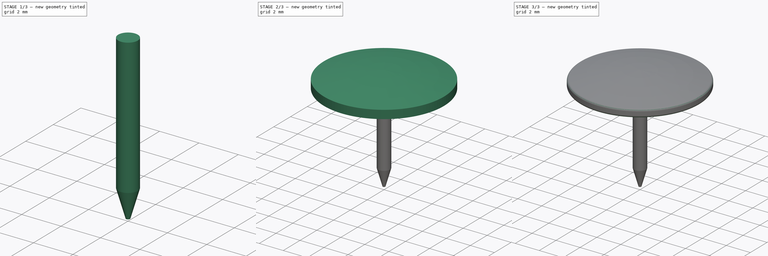
[diagram: build sequence overview — one tinted view per stage of 3, left to right]
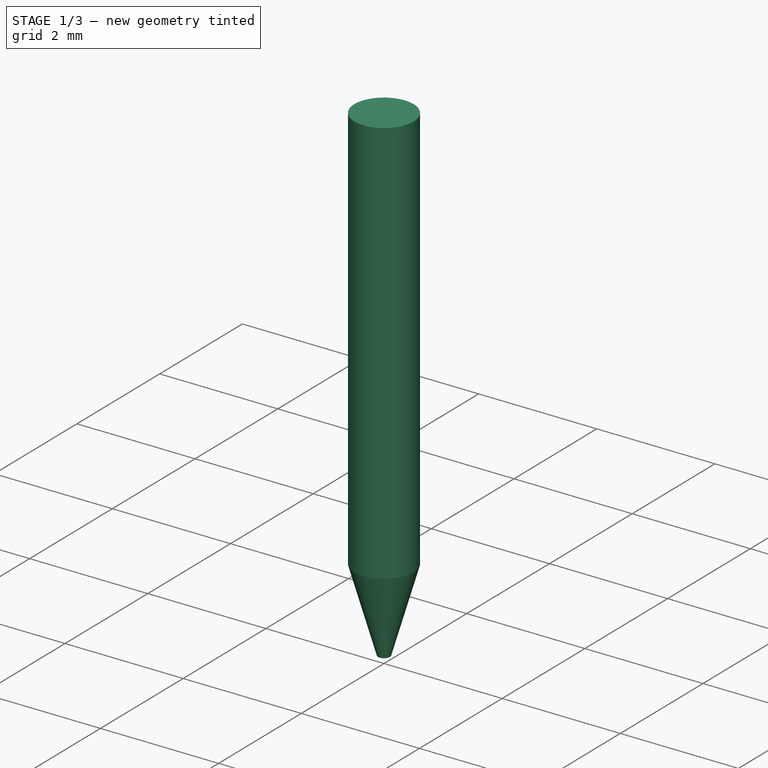
[diagram: stage 1 of 3 — iso view after this stage's code; geometry added in this stage tinted green]
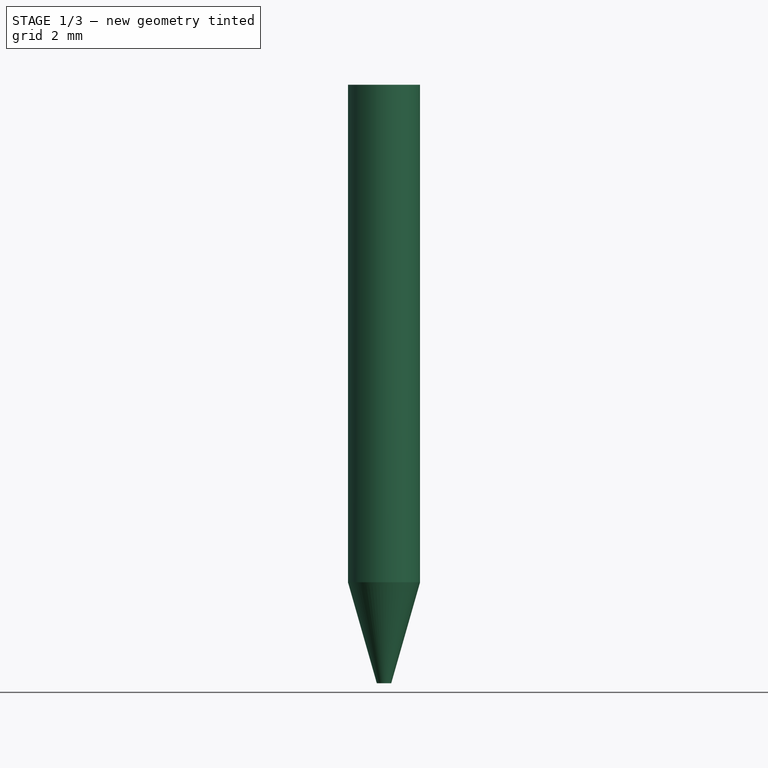
[diagram: stage 1 of 3 — front view after this stage's code; geometry added in this stage tinted green]
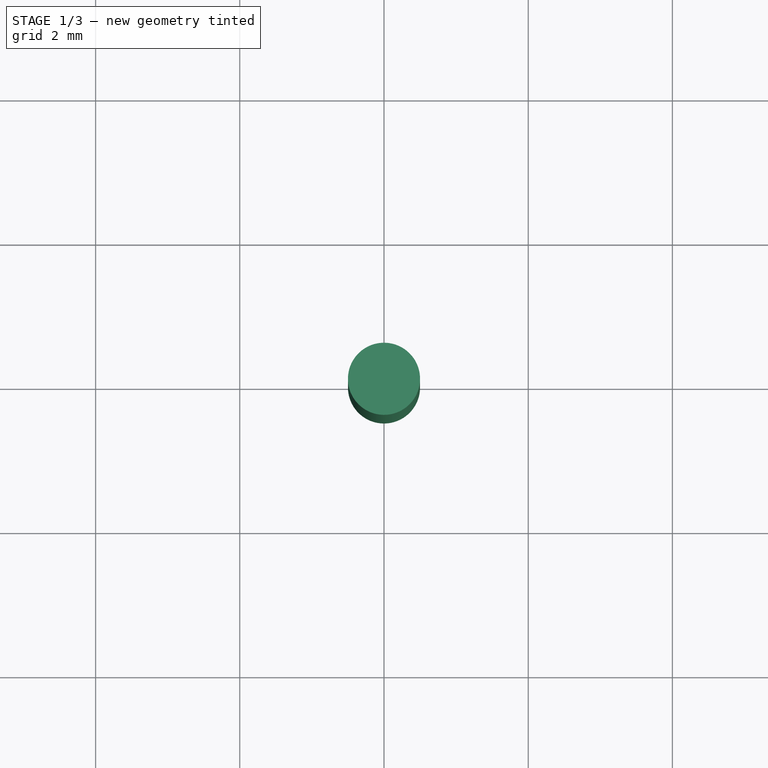
[diagram: stage 1 of 3 — top view after this stage's code; geometry added in this stage tinted green]
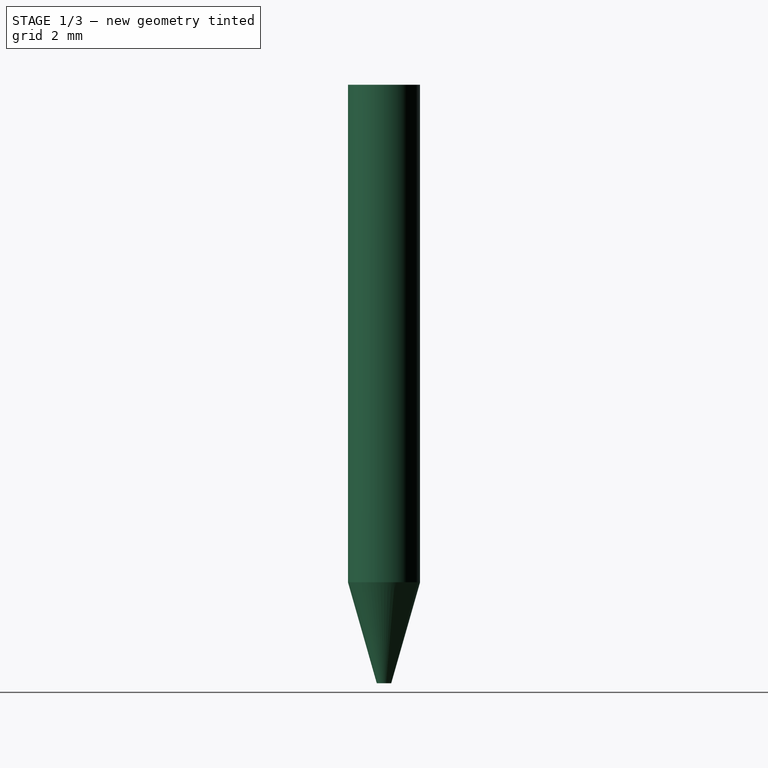
[diagram: stage 1 of 3 — right view after this stage's code; geometry added in this stage tinted green]
FCSTD DOCUMENT  (FreeCAD 0.16R6707 (Git))
Label: pushpin-model-II
License: All rights reserved
LicenseURL: http://en.wikipedia.org/wiki/All_rights_reserved
objects: Sketcher::SketchObject×2, PartDesign::Revolution×2, Part::FeaturePython×2, PartDesign::Fillet×1, App::DocumentObjectGroup×1
note: 9 computed .brp shape members not serialized (recipe doc carries the construction recipe); baked Part::Feature solids carry a one-line shape summary decoded from their .brp

FEATURE [Sketcher::SketchObject] Sketch001  label="pin-sketch"
  Placement = pos=(0,0,0) rot=(-1,0,0;4.71239rad)
  expr: Constraints[15] = 0.2 / 2
  sketch-geometry (6):
    g0: LineSegment StartX=0 StartY=0 StartZ=0 EndX=0 EndY=0.9 EndZ=0
    g1: LineSegment StartX=0 StartY=0.9 StartZ=0 EndX=0.5 EndY=0.9 EndZ=0
    g2: LineSegment StartX=0.5 StartY=0.9 StartZ=0 EndX=0.5 EndY=-6 EndZ=0
    g3: LineSegment StartX=0.5 StartY=-6 StartZ=0 EndX=0.1 EndY=-7.4 EndZ=0
    g4: LineSegment StartX=0.1 StartY=-7.4 StartZ=0 EndX=0 EndY=-7.4 EndZ=0
    g5: LineSegment StartX=0 StartY=-7.4 StartZ=0 EndX=0 EndY=0 EndZ=0
  constraints (17):
    c: Coincident(g-1,g0)
    c: Vertical(g0)
    c: Coincident(g0,g1)
    c: Horizontal(g1)
    c: Coincident(g1,g2)
    c: Vertical(g2)
    c: Coincident(g2,g3)
    c: Coincident(g3,g4)
    c: Horizontal(g4)
    c: Coincident(g4,g5)
    c: Coincident(g5,g0)
    c: Vertical(g5)
    c: DistanceX(g1,g1) = 0.5
    c: DistanceY(g5,g5) = 7.4
    c: DistanceY(g3,g2) = 1.4
    c: DistanceX(g4,g4) = 0.1
    c: DistanceY(g0,g0) = 0.9
FEATURE [PartDesign::Revolution] Revolution001  label="pin-src"
  Angle = 360
  Axis = (0,0,1)
  Base = (0,0,0)
  Placement = pos=(0,0,0) rot=(-1,0,0;4.71239rad)
  ReferenceAxis = -> Sketch001 [V_Axis]
  Reversed = true
  Sketch = -> Sketch001
FEATURE [App::DocumentObjectGroup] Grupo  label="src"
  Group = -> [Revolution,Fillet,Revolution001]
FEATURE [Part::FeaturePython] Clone001  label="Pin"  # Draft clone (typed FeaturePython)
  Objects = -> [Revolution001]
  Placement = pos=(0,0,0) rot=(-1,0,0;4.71239rad)
  Scale = (1,1,1)
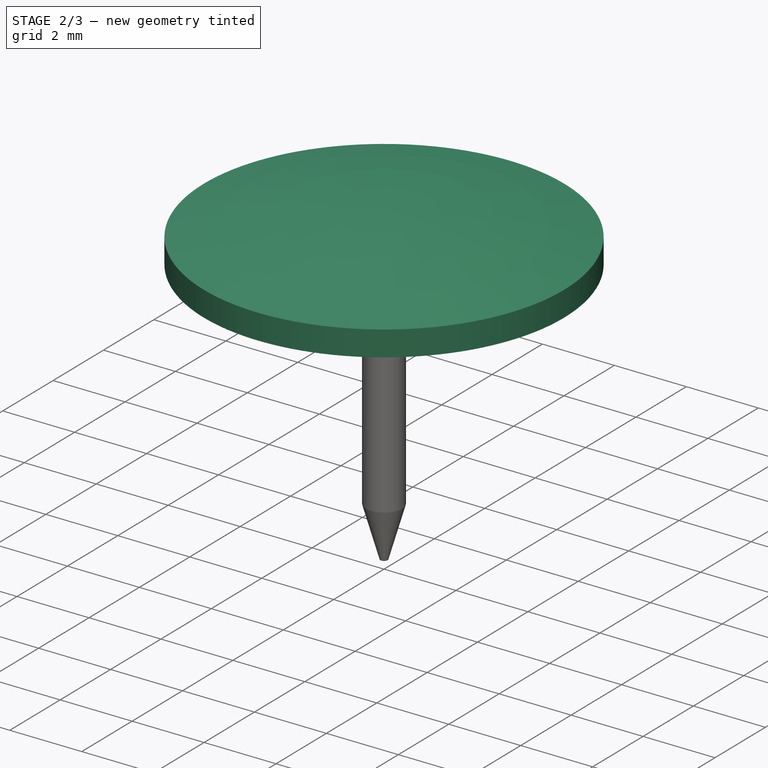
[diagram: stage 2 of 3 — iso view after this stage's code; geometry added in this stage tinted green]
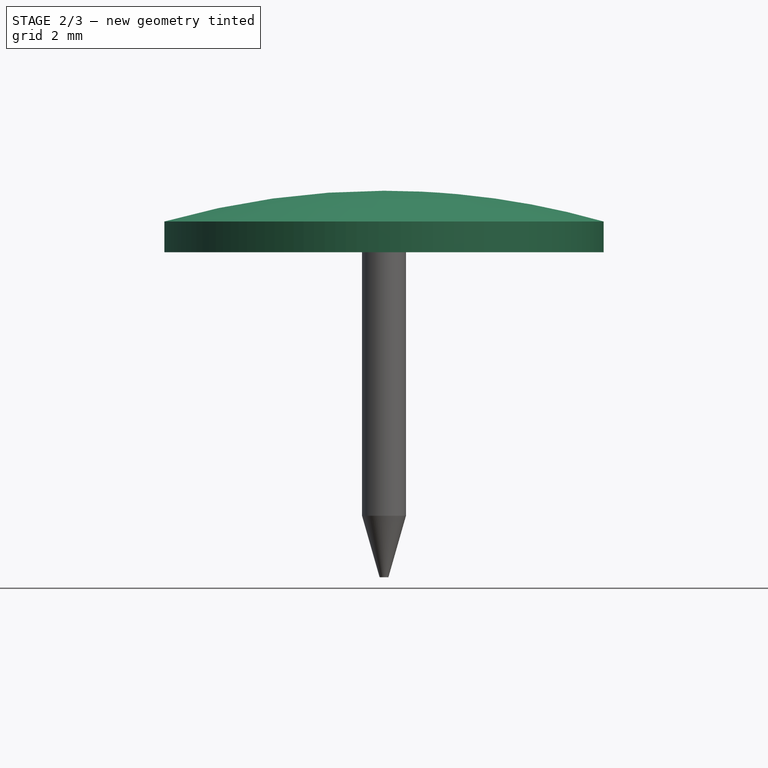
[diagram: stage 2 of 3 — front view after this stage's code; geometry added in this stage tinted green]
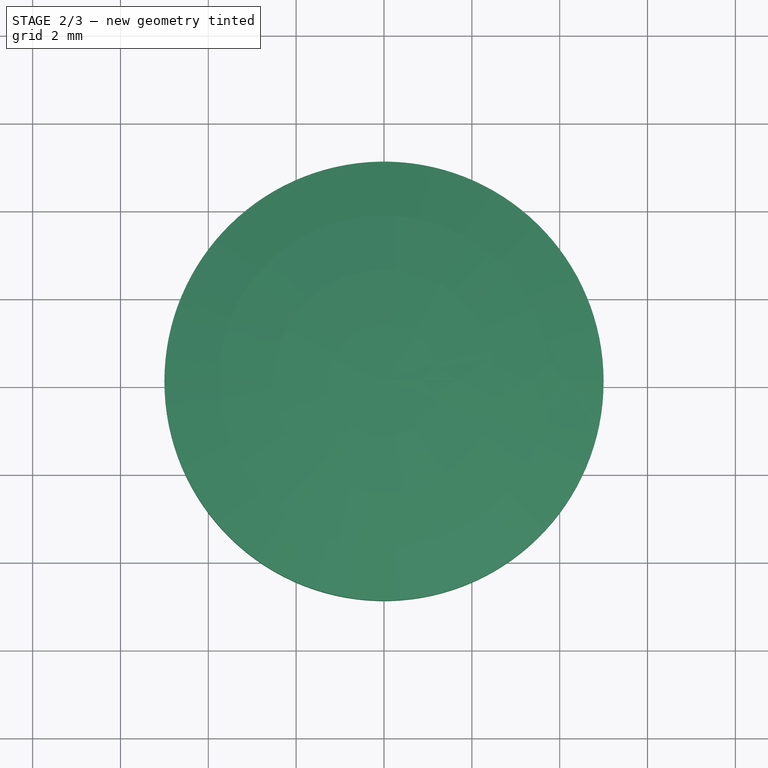
[diagram: stage 2 of 3 — top view after this stage's code; geometry added in this stage tinted green]
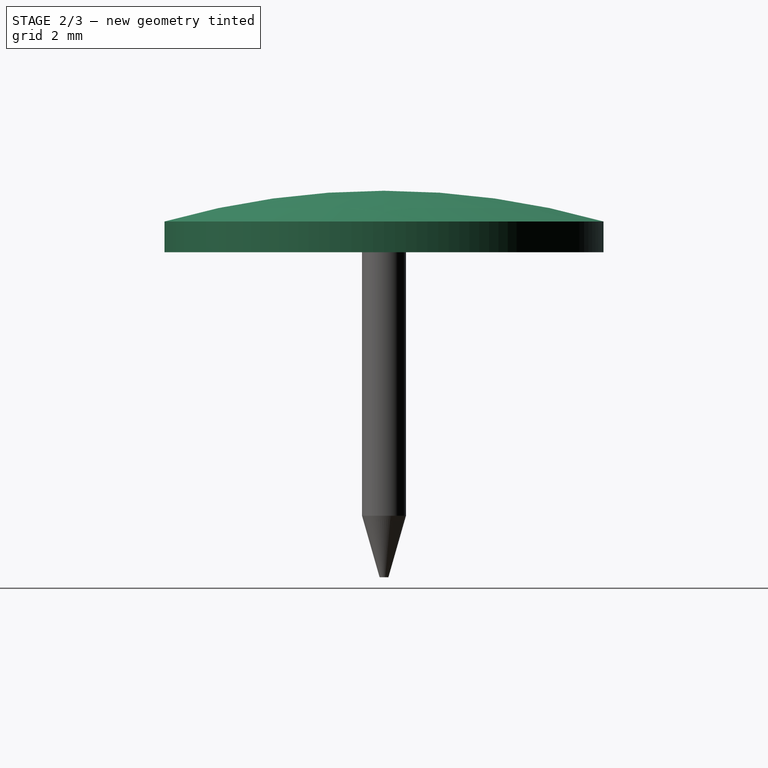
[diagram: stage 2 of 3 — right view after this stage's code; geometry added in this stage tinted green]
FEATURE [Sketcher::SketchObject] Sketch  label="handle-sketch"
  Placement = pos=(0,0,0) rot=(-1,0,0;4.71239rad)
  expr: Constraints[3] = 10 / 2
  sketch-geometry (9):
    g0: LineSegment StartX=5 StartY=0 StartZ=0 EndX=5 EndY=0.7 EndZ=0
    g1: ArcOfCircle CenterX=0 CenterY=-16.8071 CenterZ=0 NormalX=0 NormalY=0 NormalZ=1 Radius=18.2071 StartAngle=1.2926 EndAngle=1.5708
    g2: LineSegment StartX=0 StartY=1.4 StartZ=0 EndX=0 EndY=0.7 EndZ=0
    g3: LineSegment StartX=0.62 StartY=0.3 StartZ=0 EndX=1.225 EndY=0.7 EndZ=0
    g4: ArcOfCircle CenterX=0 CenterY=-16.4353 CenterZ=0 NormalX=0 NormalY=0 NormalZ=1 Radius=17.179 StartAngle=1.27547 EndAngle=1.49943
    g5: LineSegment StartX=0.62 StartY=0.3 StartZ=0 EndX=0.52 EndY=0.3 EndZ=0
    g6: LineSegment StartX=0.52 StartY=0.3 StartZ=0 EndX=0.52 EndY=0.7 EndZ=0
    g7: LineSegment StartX=0.52 StartY=0.7 StartZ=0 EndX=0 EndY=0.7 EndZ=0
    g8: LineSegment StartX=0 StartY=0.7 StartZ=0 EndX=0.52 EndY=0.7 EndZ=0
  constraints (28):
    c: PointOnObject(g0,g-1)
    c: Vertical(g0)
    c: DistanceY(g0,g0) = 0.7
    c: DistanceX(g-1,g0) = 5
    c: PointOnObject(g1,g-2)
    c: Coincident(g1,g0)
    c: PointOnObject(g1,g-2)
    c: DistanceY(g-1,g1) = 1.4
    c: Coincident(g2,g1)
    c: Vertical(g2)
    c: Equal(g2,g0)
    c: DistanceX(g2,g3) = 1.225
    c: PointOnObject(g4,g-2)
    c: Coincident(g4,g3)
    c: Coincident(g4,g0)
    c: Coincident(g3,g5)
    c: Horizontal(g5)
    c: Coincident(g5,g6)
    c: Vertical(g6)
    c: Coincident(g6,g7)
    c: Coincident(g7,g2)
    c: Coincident(g8,g2)
    c: Coincident(g8,g6)
    c: DistanceX(g5,g5) = 0.1
    c: Horizontal(g7)
    c: PointOnObject(g3,g7)
    c: DistanceX(g7,g7) = 0.52
    c: DistanceY(g5,g6) = 0.4
FEATURE [PartDesign::Revolution] Revolution  label="Handle-src"
  Angle = 360
  Axis = (0,0,1)
  Base = (0,0,0)
  Placement = pos=(0,0,0) rot=(-1,0,0;4.71239rad)
  ReferenceAxis = -> Sketch [V_Axis]
  Reversed = true
  Sketch = -> Sketch
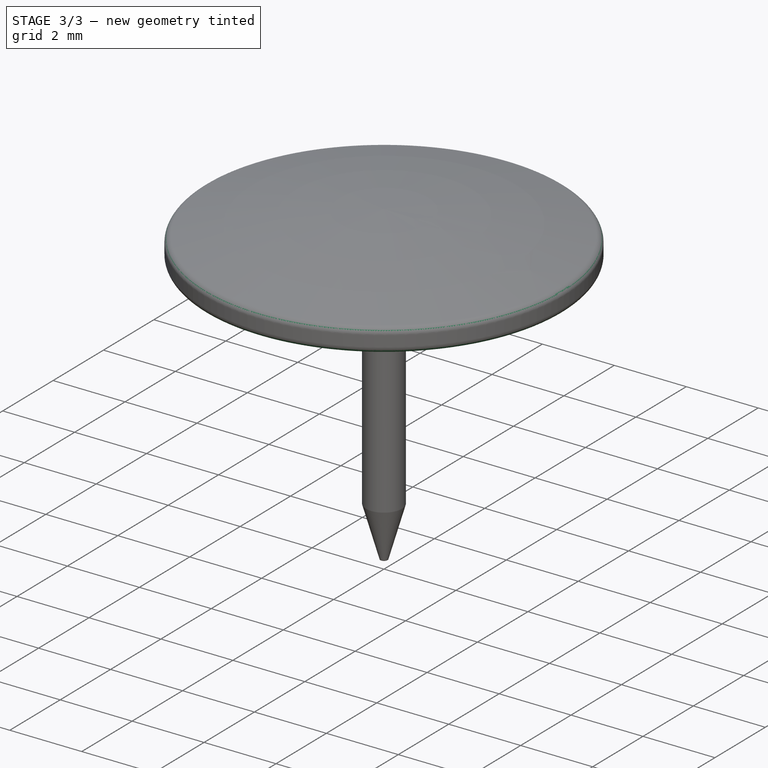
[diagram: stage 3 of 3 — iso view after this stage's code; geometry added in this stage tinted green]
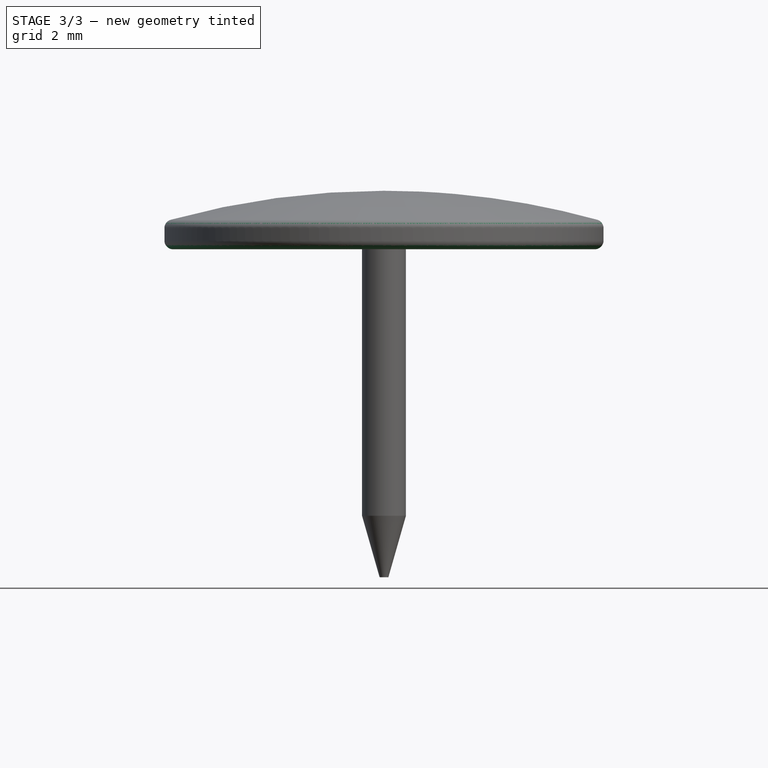
[diagram: stage 3 of 3 — front view after this stage's code; geometry added in this stage tinted green]
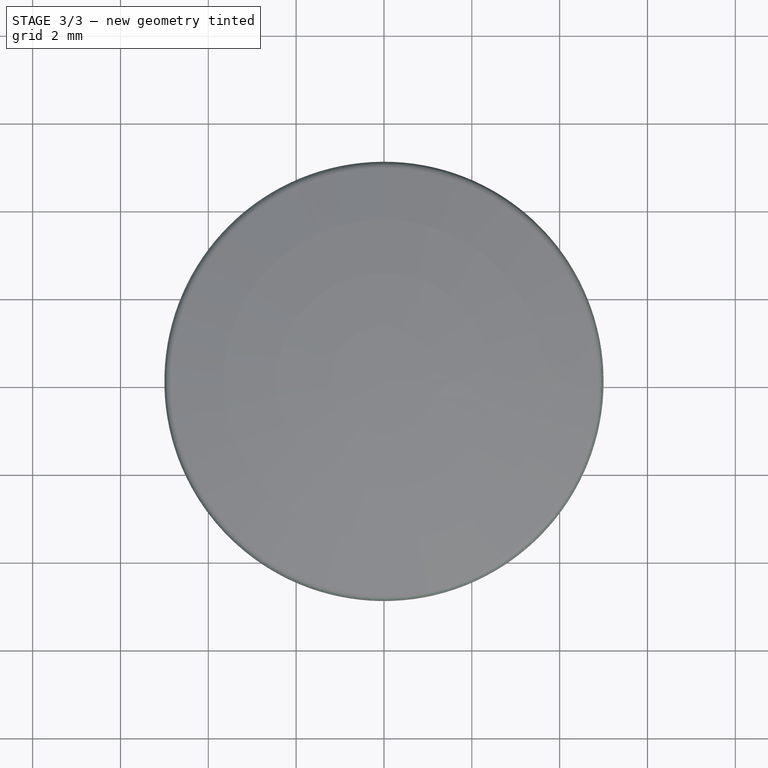
[diagram: stage 3 of 3 — top view after this stage's code; geometry added in this stage tinted green]
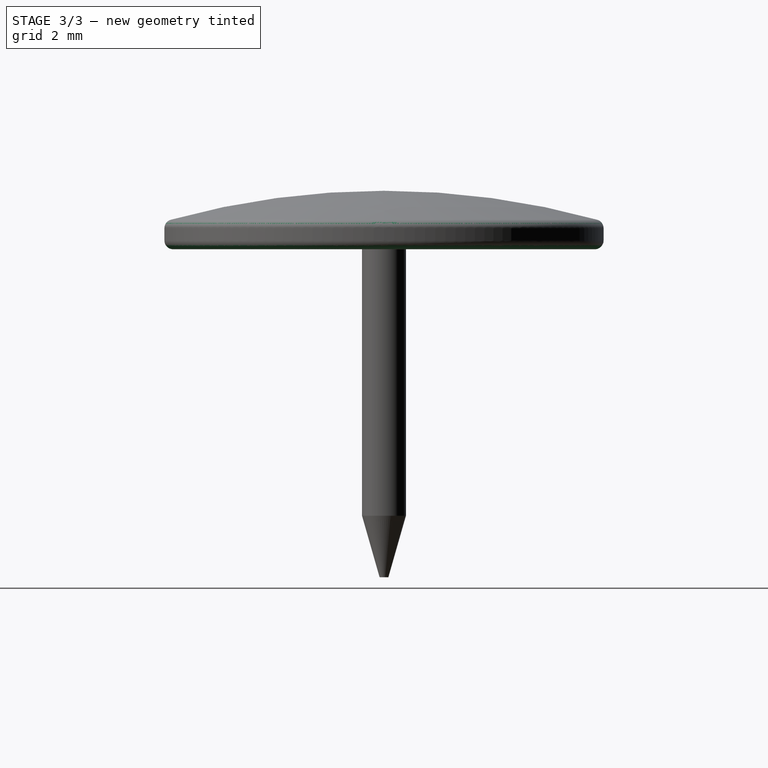
[diagram: stage 3 of 3 — right view after this stage's code; geometry added in this stage tinted green]
FEATURE [PartDesign::Fillet] Fillet  label="handle-rounded"
  Base = -> Revolution [Edge9,Edge7]
  Placement = pos=(0,0,0) rot=(-1,0,0;4.71239rad)
  Radius = 0.2
FEATURE [Part::FeaturePython] Clone  label="Handle"  # Draft clone (typed FeaturePython)
  Objects = -> [Fillet]
  Placement = pos=(0,0,0) rot=(-1,0,0;4.71239rad)
  Scale = (1,1,1)
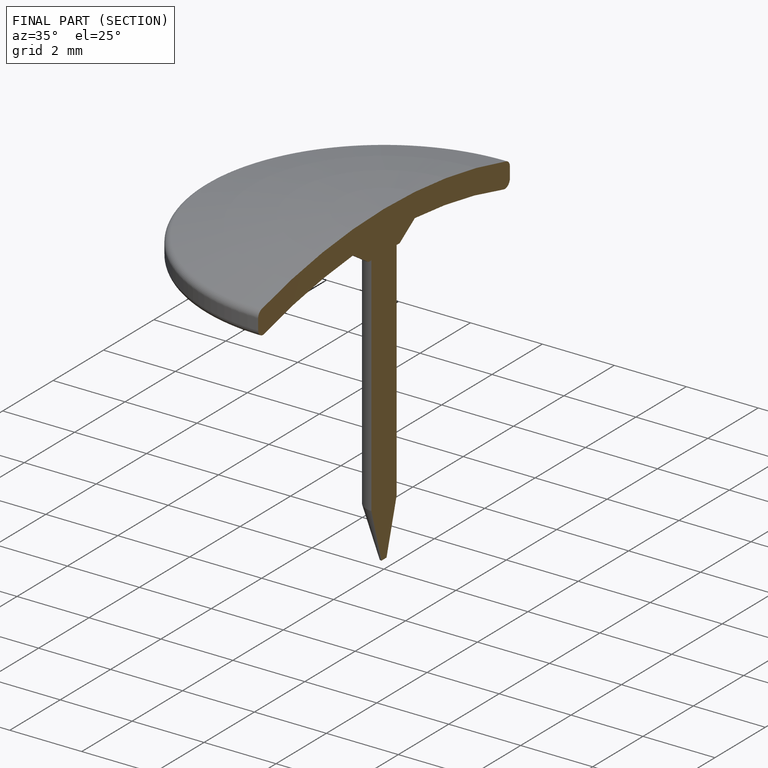
[diagram: finished part — half-section view (interior)]
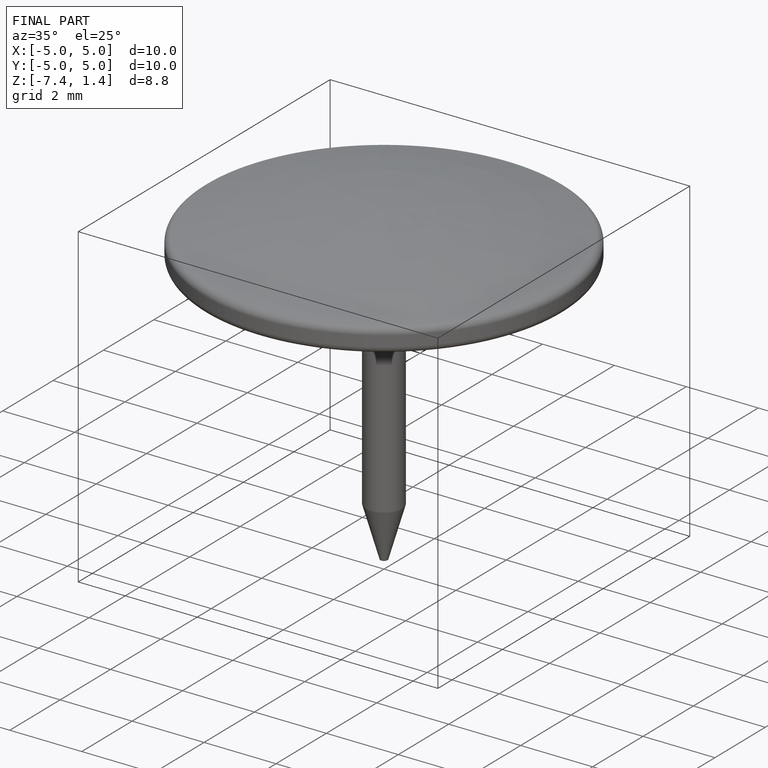
[diagram: finished part — iso view with bounding-box wireframe]
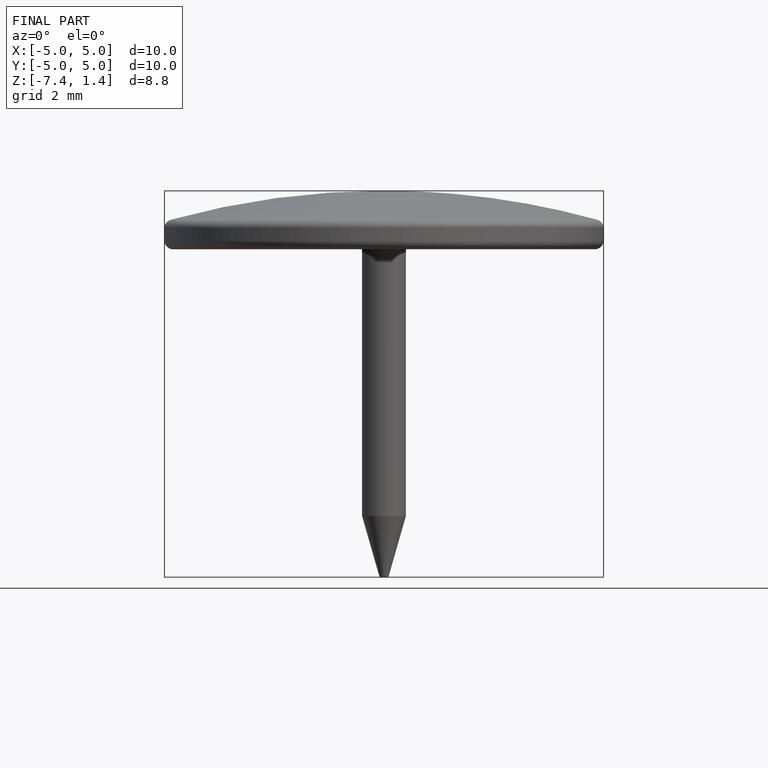
[diagram: finished part — front view with bounding-box wireframe]
